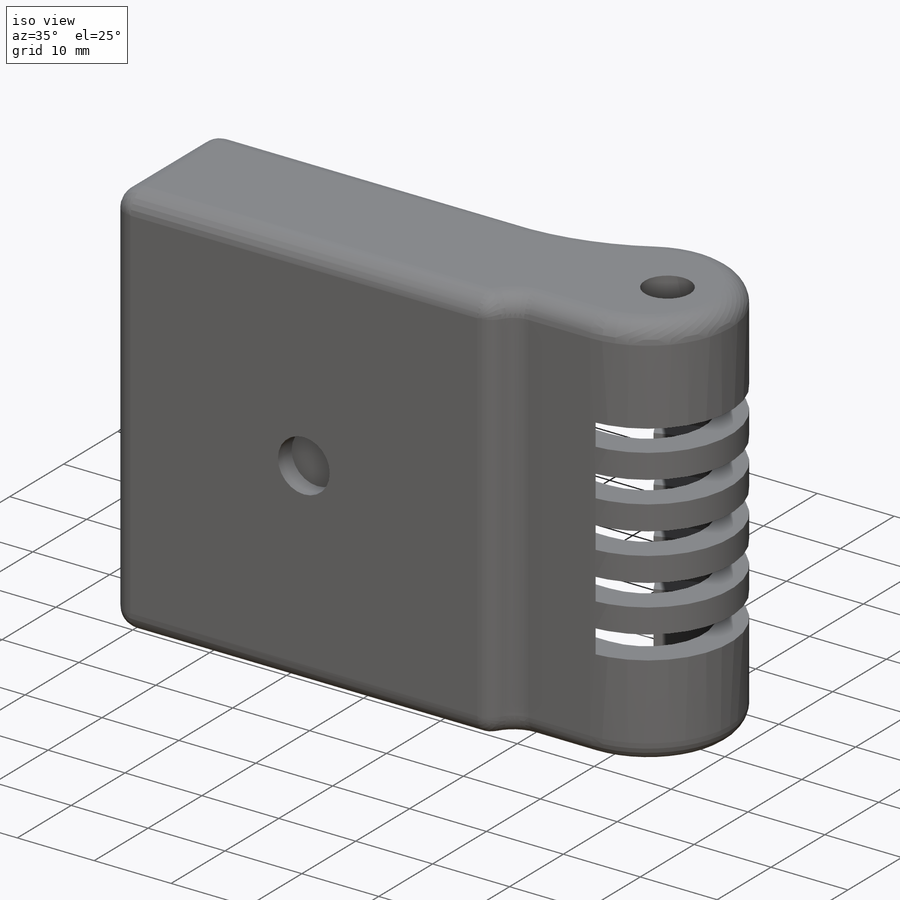
[diagram: iso view]
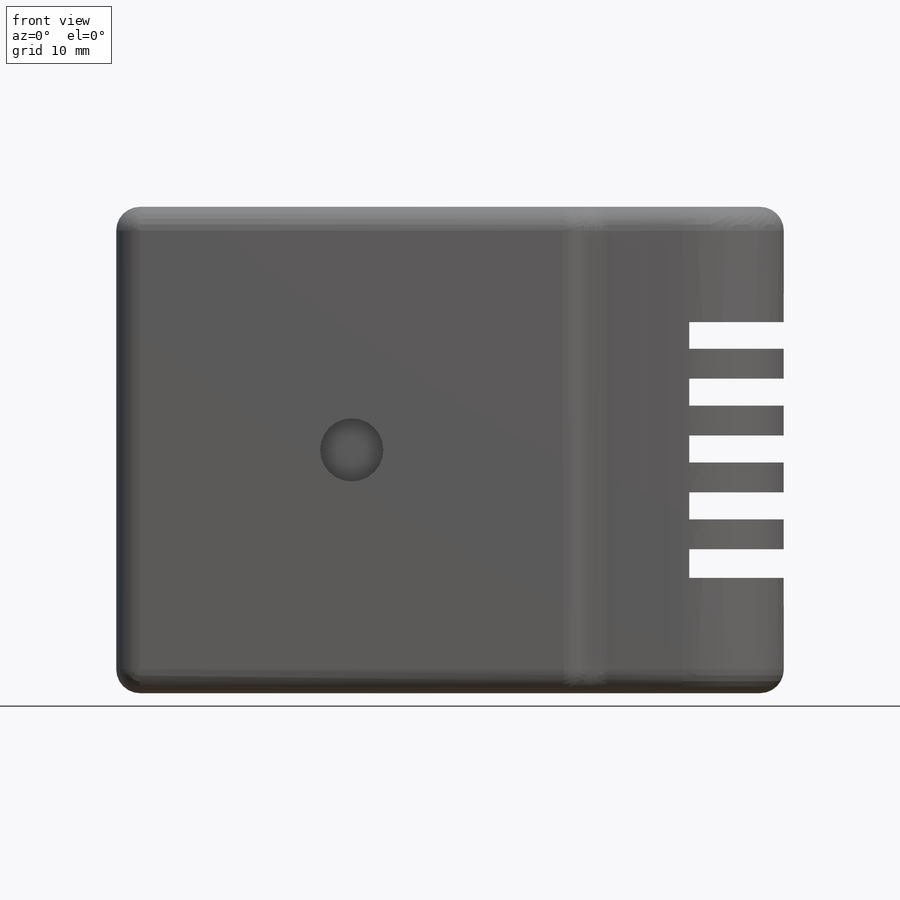
[diagram: front view]
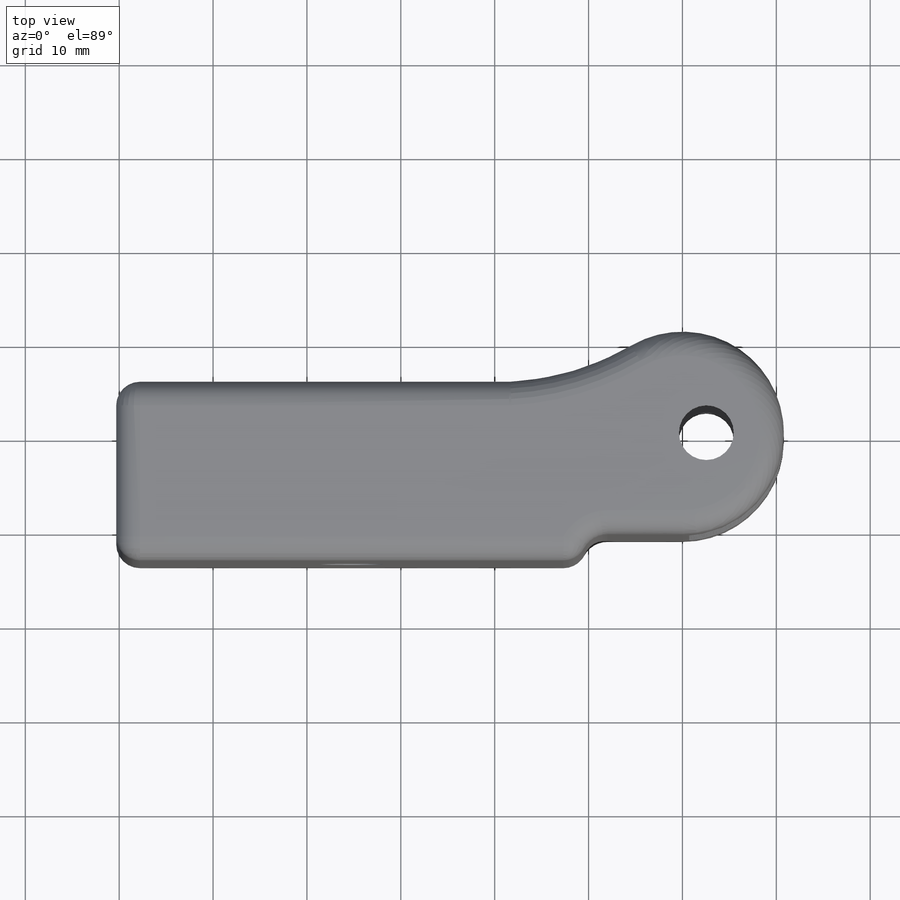
[diagram: top view]
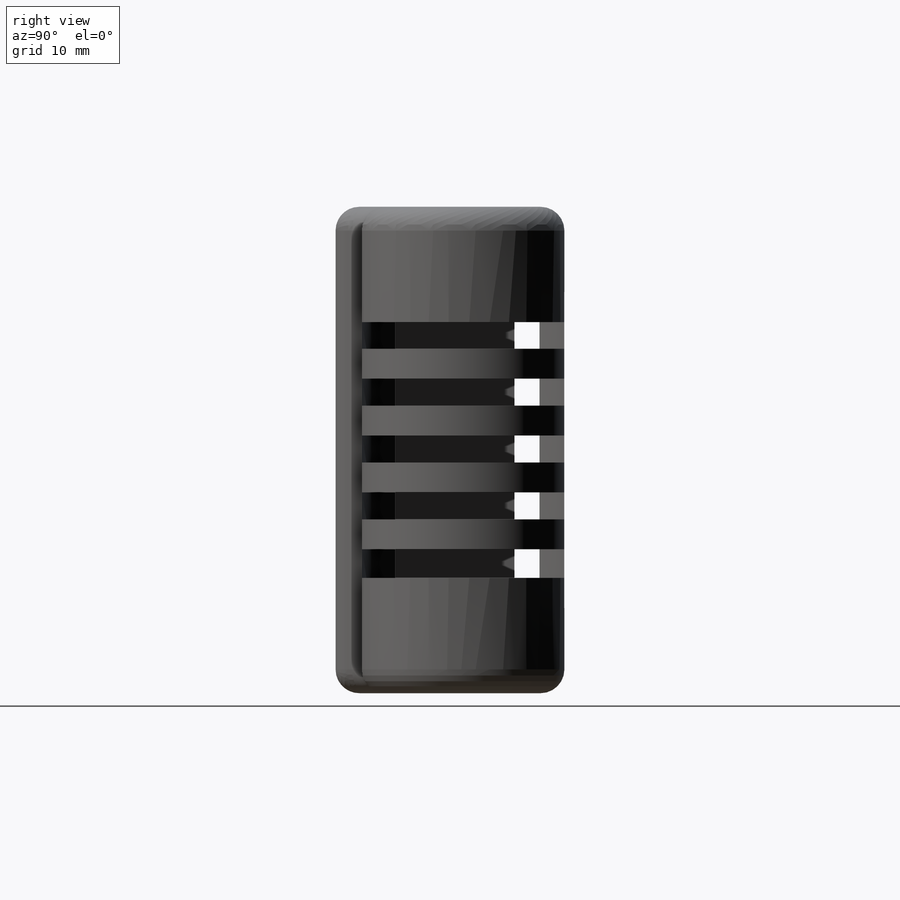
[diagram: right view]
SOLIDWORKS PART (.sldprt)
format: sldprt  version: not decoded by parser v0  size: 394,240 bytes
history: native  units: mm
features: sketch x10, cut_extrude x8, extrude x2, material x1, fillet x1, shell x1 (+11 scaffold rows collapsed)
feature tree (34):
  scaffold x11  (default folders/planes/origin — collapsed)
  material  "Material <not specified>"
  sketch  "Sketch1"  dims[D1=~31.670943mm]
  extrude  "Extrude1"  Depth=51.816mm
  sketch  "Sketch2"  dims[c1.D1=41.91mm c2.D1=~91.563686deg]
  extrude  "Extrude2"  [1 undecoded]
  fillet  "Fillet1"  Radius=2.54mm
  shell  "Shell1"  Thickness=3.556mm
  sketch  "Sketch4"
  cut_extrude  "Cut-Extrude4"  [1 undecoded]
  sketch  "Sketch7"  dims[D1=2.54mm]
  cut_extrude  "Cut-Extrude6"  [1 undecoded]
  sketch  "Sketch8"
  cut_extrude  "Cut-Extrude7"  [1 undecoded]
  sketch  "Sketch9"
  cut_extrude  "Cut-Extrude8"  [1 undecoded]
  sketch  "Sketch10"
  cut_extrude  "Cut-Extrude9"  [1 undecoded]
  sketch  "Sketch11"
  cut_extrude  "Cut-Extrude10"  [1 undecoded]
  sketch  "Sketch12"
  cut_extrude  "Cut-Extrude11"  [1 undecoded]
  sketch  "Sketch13"
  cut_extrude  "Cut-Extrude12"  Depth=2.54mm
decode coverage: 7 of 22 modeling features carry decoded parameters
note: ~ marks probable driven/reference dimensions
note: 8 parameter values undecoded
summary: no parameter record found for 8 features
note: suppression state not decoded; provenance and decode notes live in map.json
